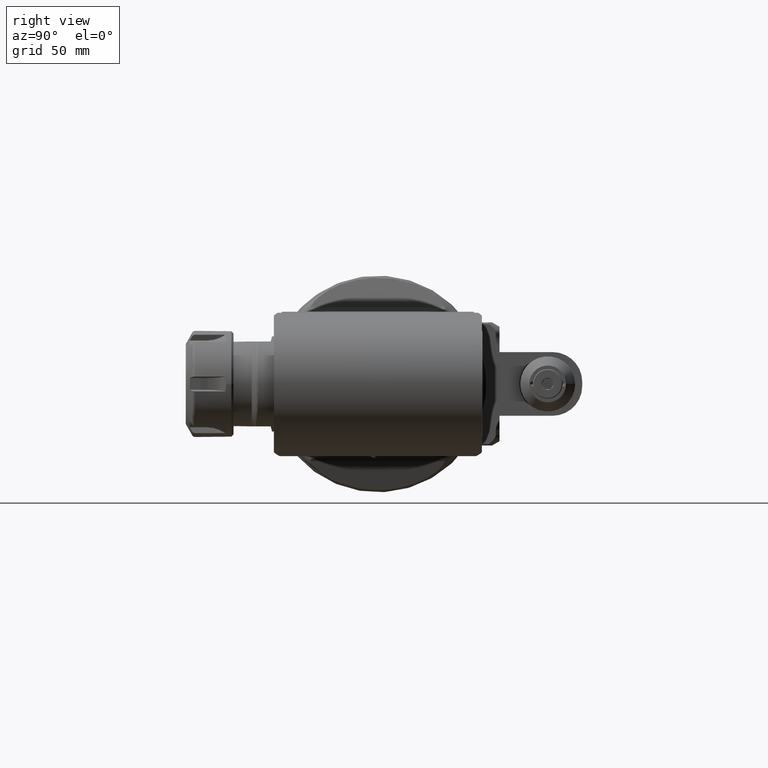
[diagram: clean part render]
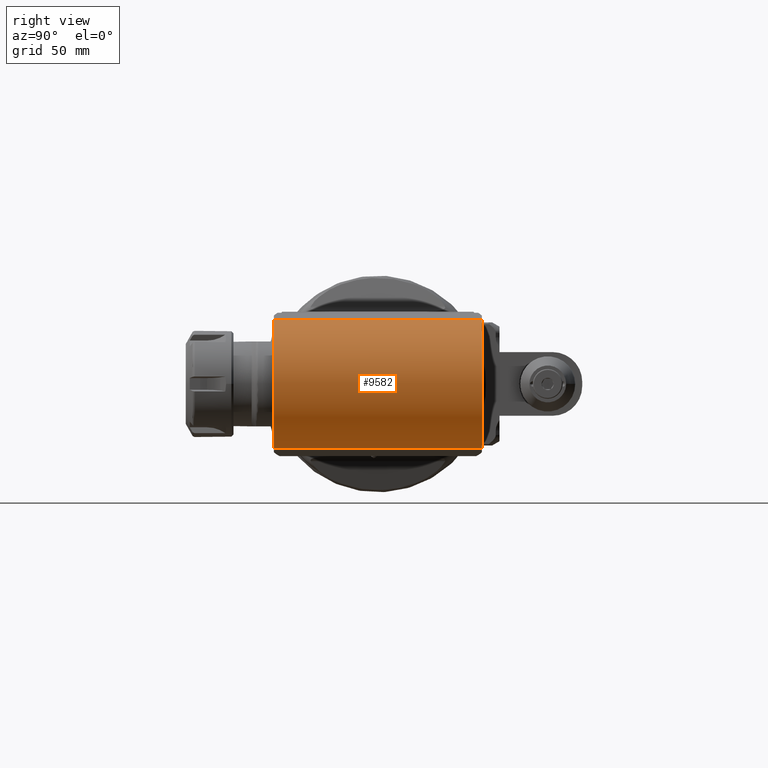
[diagram: same view with one face highlighted and labeled with its STEP entity id]
A machine part, right view. The second image highlights one B-rep face of the part: STEP entity #9582.
In plain terms, the highlighted cylindrical surface (partial cylindrical patch) has radius 31 mm, axis along (-0, 1, 0).
Its self-contained STEP definition (entity closure, byte-faithful):
#682=LINE('',#13850,#1418);
#685=LINE('',#13918,#1421);
#1418=VECTOR('',#11152,98.);
#1421=VECTOR('',#11171,98.);
#2133=CYLINDRICAL_SURFACE('',#10185,31.);
#2267=FACE_OUTER_BOUND('',#2796,.T.);
#2796=EDGE_LOOP('',(#6439,#6440,#6441,#6442));
#3389=CIRCLE('',#10183,31.);
#3391=CIRCLE('',#10186,31.);
#3818=VERTEX_POINT('',#13847);
#3819=VERTEX_POINT('',#13849);
#3824=VERTEX_POINT('',#13875);
#3835=VERTEX_POINT('',#13917);
#4887=EDGE_CURVE('',#3819,#3818,#682,.T.);
#4895=EDGE_CURVE('',#3819,#3824,#3389,.T.);
#4907=EDGE_CURVE('',#3835,#3824,#685,.T.);
#4908=EDGE_CURVE('',#3835,#3818,#3391,.T.);
#6439=ORIENTED_EDGE('',*,*,#4907,.T.);
#6440=ORIENTED_EDGE('',*,*,#4895,.F.);
#6441=ORIENTED_EDGE('',*,*,#4887,.T.);
#6442=ORIENTED_EDGE('',*,*,#4908,.F.);
#9582=ADVANCED_FACE('',(#2267),#2133,.T.);
#10183=AXIS2_PLACEMENT_3D('',#13876,#11164,#11165);
#10185=AXIS2_PLACEMENT_3D('',#13916,#11169,#11170);
#10186=AXIS2_PLACEMENT_3D('',#13919,#11172,#11173);
#11152=DIRECTION('',(0.,1.,0.));
#11164=DIRECTION('center_axis',(0.,-1.,0.));
#11165=DIRECTION('ref_axis',(0.207911690816993,0.,-0.978147600733968));
#11169=DIRECTION('center_axis',(0.,1.,0.));
#11170=DIRECTION('ref_axis',(1.,0.,0.));
#11171=DIRECTION('',(0.,-1.,0.));
#11172=DIRECTION('center_axis',(0.,1.,0.));
#11173=DIRECTION('ref_axis',(0.207911690816993,0.,0.978147600733968));
#13847=CARTESIAN_POINT('',(284.5083594153,49.,-30.32257562275));
#13849=CARTESIAN_POINT('',(284.5083594153,-49.,-30.32257562275));
#13850=CARTESIAN_POINT('',(284.5083594153,-49.,-30.32257562275));
#13875=CARTESIAN_POINT('',(284.5083594153,-49.,30.32257562275));
#13876=CARTESIAN_POINT('Origin',(278.063097,-49.,0.));
#13916=CARTESIAN_POINT('Origin',(278.063097,49.,0.));
#13917=CARTESIAN_POINT('',(284.5083594153,49.,30.32257562275));
#13918=CARTESIAN_POINT('',(284.5083594153,49.,30.32257562275));
#13919=CARTESIAN_POINT('Origin',(278.063097,49.,0.));